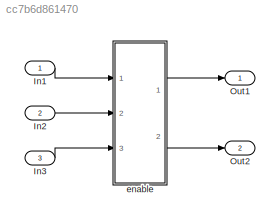
MODEL slx_cc7b6d861470
KIND model
CONFIG AbsTol = auto
CONFIG EnableMultiTasking = off
CONFIG FixedStep = auto
CONFIG MaxStep = auto
CONFIG MinStep = auto
CONFIG RelTol = 1e-3
CONFIG SampleTimeConstraint = Unconstrained
CONFIG Solver = FixedStepDiscrete
CONFIG SolverName = FixedStepDiscrete
CONFIG StartTime = 0.0
CONFIG StopTime = 10.0
BLOCK [Inport] In1
  IconDisplay = Port number
BLOCK [Inport] In2
  IconDisplay = Port number
  Port = 2
BLOCK [Inport] In3
  IconDisplay = Port number
  Port = 3
BLOCK [Outport] Out1
  IconDisplay = Port number
BLOCK [Outport] Out2
  IconDisplay = Port number
  Port = 2
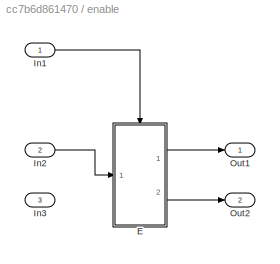
BLOCK [SubSystem] enable
  AncestorBlock = Block_TestLib/enable
  Ports = [3, 2]
  RequestExecContextInheritance = off
  Variant = off
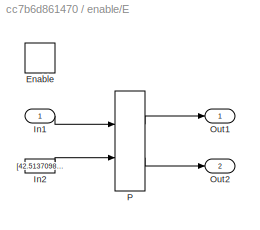
BLOCK [SubSystem] enable/E
  Ports = [1, 2, 1]
  RequestExecContextInheritance = off
  TreatAsAtomicUnit = on
  Variant = off
BLOCK [EnablePort] enable/E/Enable
  Ports = []
BLOCK [Inport] enable/E/In1
  IconDisplay = Port number
  PortDimensions = 1
BLOCK [Constant] enable/E/In2
  Value = [42.5137098317275 44.0137098317275 45.5137098317275 47.0137098317275 48.5137098317275]
BLOCK [Outport] enable/E/Out1
  IconDisplay = Port number
BLOCK [Outport] enable/E/Out2
  IconDisplay = Port number
  Port = 2
BLOCK [PreLookup] enable/E/P
  BreakpointDataTypeStr = Inherit: Inherit from 'Breakpoint data'
  BreakpointsData = [10:10:110]
  BreakpointsDataSource = Input port
  ExtrapMethod = Linear
  FractionDataTypeStr = single
  IndexDataTypeStr = uint16
  IndexSearchMethod = Linear search
  InputPortMap = u0,p1
  Ports = [2, 2]
  RndMeth = Ceiling
  UseLastBreakpoint = on
BLOCK [Inport] enable/In1
  IconDisplay = Port number
  OutDataTypeStr = boolean
BLOCK [Inport] enable/In2
  IconDisplay = Port number
  Port = 2
BLOCK [Inport] enable/In3
  IconDisplay = Port number
  Port = 3
BLOCK [Outport] enable/Out1
  IconDisplay = Port number
BLOCK [Outport] enable/Out2
  IconDisplay = Port number
  Port = 2
LINE In1:1 -> enable:1
LINE In2:1 -> enable:2
LINE In3:1 -> enable:3
LINE enable:1 -> Out1:1
LINE enable:2 -> Out2:1
